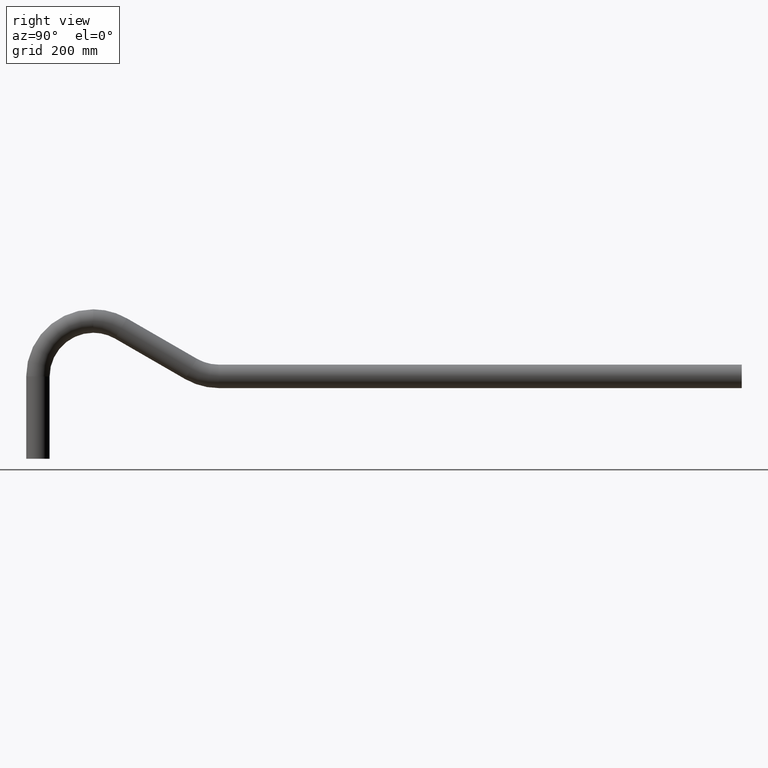
[diagram: clean part render]
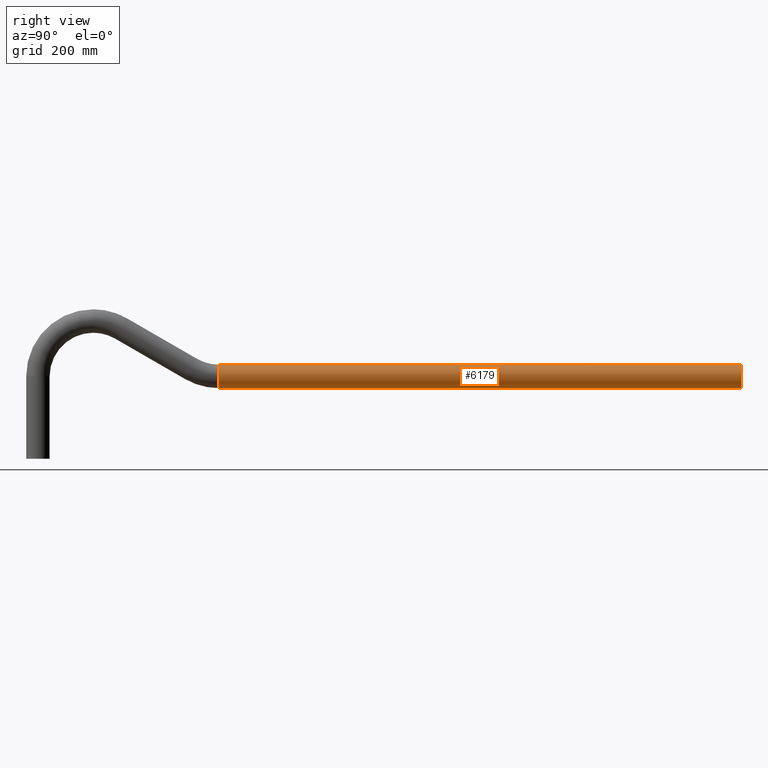
[diagram: same view with one face highlighted and labeled with its STEP entity id]
A machine part, right view. The second image highlights one B-rep face of the part: STEP entity #6179.
In plain terms, the highlighted cylindrical surface (edge-blend (fillet) strip) has radius 21.2 mm, axis along (0, 1, 0).
Its self-contained STEP definition (entity closure, byte-faithful):
#80 = EDGE_CURVE ( 'NONE', #5764, #6833, #1710, .T. ) ;
#142 = CARTESIAN_POINT ( 'NONE',  ( 0.0000000000000000000, 305.5949192431106700, 95.59999999999999400 ) ) ;
#596 = DIRECTION ( 'NONE',  ( 0.0000000000000000000, 1.000000000000000000, 0.0000000000000000000 ) ) ;
#1115 = CARTESIAN_POINT ( 'NONE',  ( 0.0000000000000000000, 1250.589999999998100, 74.40000000000003400 ) ) ;
#1221 = ORIENTED_EDGE ( 'NONE', *, *, #9962, .F. ) ;
#1274 = DIRECTION ( 'NONE',  ( 0.0000000000000000000, 1.000000000000000000, 0.0000000000000000000 ) ) ;
#1477 = DIRECTION ( 'NONE',  ( 1.000000000000000000, 0.0000000000000000000, 0.0000000000000000000 ) ) ;
#1578 = AXIS2_PLACEMENT_3D ( 'NONE', #8529, #596, #1477 ) ;
#1710 = CIRCLE ( 'NONE', #9777, 21.19999999999999600 ) ;
#1832 = EDGE_LOOP ( 'NONE', ( #2097, #4863, #3279, #1221 ) ) ;
#2053 = CARTESIAN_POINT ( 'NONE',  ( 2.596251214192388800E-015, 305.5949192431106700, 53.19999999999999600 ) ) ;
#2097 = ORIENTED_EDGE ( 'NONE', *, *, #8419, .T. ) ;
#2347 = FACE_OUTER_BOUND ( 'NONE', #1832, .T. ) ;
#2616 = CARTESIAN_POINT ( 'NONE',  ( 2.596251214192389200E-015, 1250.589999999998100, 53.20000000000003800 ) ) ;
#3279 = ORIENTED_EDGE ( 'NONE', *, *, #80, .F. ) ;
#3462 = VECTOR ( 'NONE', #9393, 1000.000000000000000 ) ;
#3757 = DIRECTION ( 'NONE',  ( 0.0000000000000000000, 1.000000000000000000, 4.405669857042791700E-017 ) ) ;
#3868 = EDGE_CURVE ( 'NONE', #7907, #6833, #7024, .T. ) ;
#4818 = CARTESIAN_POINT ( 'NONE',  ( 0.0000000000000000000, 305.5949192431106700, 74.39999999999999100 ) ) ;
#4863 = ORIENTED_EDGE ( 'NONE', *, *, #3868, .T. ) ;
#5633 = CIRCLE ( 'NONE', #1578, 21.19999999999999600 ) ;
#5751 = DIRECTION ( 'NONE',  ( 0.0000000000000000000, 0.0000000000000000000, 1.000000000000000000 ) ) ;
#5764 = VERTEX_POINT ( 'NONE', #8929 ) ;
#5809 = CARTESIAN_POINT ( 'NONE',  ( 0.0000000000000000000, 305.5949192431106700, 95.59999999999999400 ) ) ;
#5831 = VERTEX_POINT ( 'NONE', #142 ) ;
#6082 = CYLINDRICAL_SURFACE ( 'NONE', #9721, 21.19999999999999600 ) ;
#6179 = ADVANCED_FACE ( 'NONE', ( #2347 ), #6082, .T. ) ;
#6833 = VERTEX_POINT ( 'NONE', #2616 ) ;
#7024 = LINE ( 'NONE', #2053, #7305 ) ;
#7305 = VECTOR ( 'NONE', #3757, 1000.000000000000000 ) ;
#7664 = CARTESIAN_POINT ( 'NONE',  ( 2.596251214192391500E-015, 305.5949192431106700, 53.19999999999999600 ) ) ;
#7907 = VERTEX_POINT ( 'NONE', #7664 ) ;
#8419 = EDGE_CURVE ( 'NONE', #5831, #7907, #5633, .T. ) ;
#8529 = CARTESIAN_POINT ( 'NONE',  ( 0.0000000000000000000, 305.5949192431106700, 74.39999999999999100 ) ) ;
#8929 = CARTESIAN_POINT ( 'NONE',  ( 0.0000000000000000000, 1250.589999999998100, 95.60000000000003700 ) ) ;
#9144 = DIRECTION ( 'NONE',  ( 0.0000000000000000000, 1.000000000000000000, 4.405669857042791700E-017 ) ) ;
#9393 = DIRECTION ( 'NONE',  ( 0.0000000000000000000, 1.000000000000000000, 4.405669857042791700E-017 ) ) ;
#9721 = AXIS2_PLACEMENT_3D ( 'NONE', #4818, #9144, #5751 ) ;
#9777 = AXIS2_PLACEMENT_3D ( 'NONE', #1115, #1274, #9914 ) ;
#9914 = DIRECTION ( 'NONE',  ( 1.000000000000000000, 0.0000000000000000000, 0.0000000000000000000 ) ) ;
#9962 = EDGE_CURVE ( 'NONE', #5831, #5764, #10848, .T. ) ;
#10848 = LINE ( 'NONE', #5809, #3462 ) ;